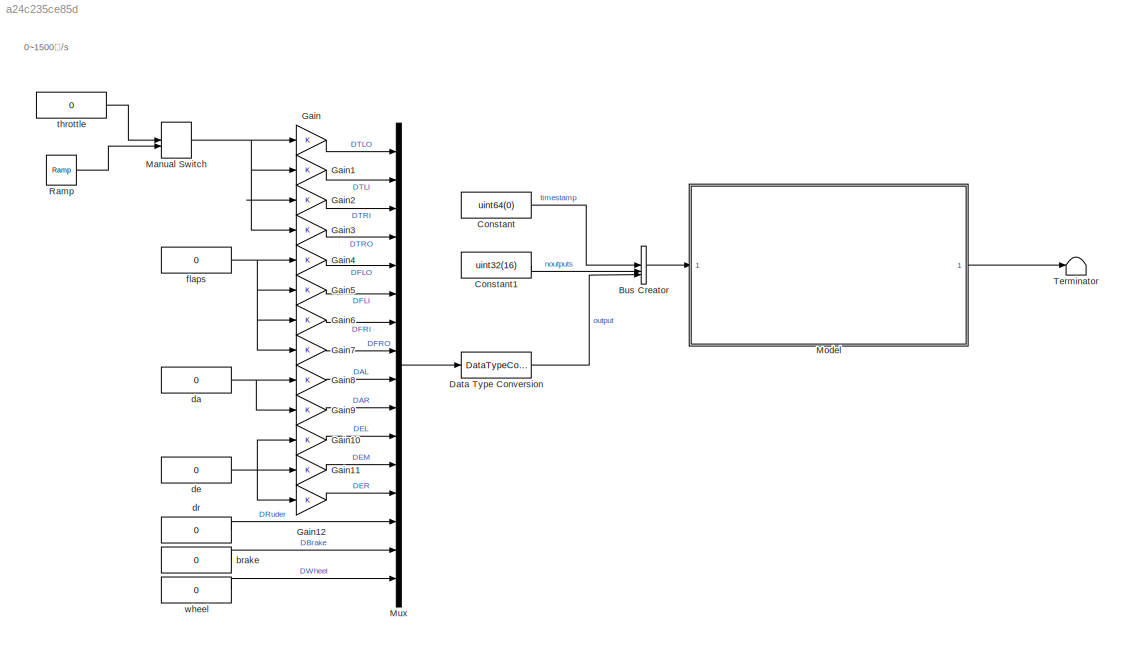
MODEL slx_a24c235ce85d
KIND model
CONFIG AbsTol = auto
CONFIG EnableMultiTasking = off
CONFIG FixedStep = 0.005
CONFIG MaxStep = auto
CONFIG MinStep = auto
CONFIG RelTol = 1e-3
CONFIG SampleTimeConstraint = Unconstrained
CONFIG SolverName = FixedStepAuto
CONFIG StartTime = 0.0
CONFIG StopTime = 100
BLOCK [BusCreator] Bus Creator
  DisplayOption = bar
  InheritFromInputs = on
  Inputs = 3
BLOCK [Constant] Constant
  Value = uint64(0)
BLOCK [Constant] Constant1
  Value = uint32(16)
BLOCK [DataTypeConversion] Data Type Conversion
  OutDataTypeStr = single
  RndMeth = Floor
  SaturateOnIntegerOverflow = off
BLOCK [Gain] Gain
BLOCK [Gain] Gain1
BLOCK [Gain] Gain10
BLOCK [Gain] Gain11
BLOCK [Gain] Gain12
BLOCK [Gain] Gain2
BLOCK [Gain] Gain3
BLOCK [Gain] Gain4
BLOCK [Gain] Gain5
BLOCK [Gain] Gain6
BLOCK [Gain] Gain7
BLOCK [Gain] Gain8
BLOCK [Gain] Gain9
BLOCK [ManualSwitch] Manual Switch
  CurrentSetting = 0
BLOCK [ModelReference] Model
  ModelNameDialog = L400_airframe.slx
  ModelReferenceVersion = 5.334
BLOCK [Mux] Mux
  DisplayOption = bar
  Inputs = 16
BLOCK [Reference] Ramp  REF=simulink/Sources/Ramp
  SourceBlock = simulink/Sources/Ramp
  SourceType = Ramp
BLOCK [Terminator] Terminator
BLOCK [Constant] brake
  NameLocation = left
  Value = 0
BLOCK [Constant] da
  NameLocation = left
  Value = 0
BLOCK [Constant] de
  NameLocation = left
  Value = 0
BLOCK [Constant] dr
  NameLocation = left
  Value = 0
BLOCK [Constant] flaps
  NameLocation = left
  Value = 0
BLOCK [Constant] throttle
  NameLocation = left
  Value = 0
BLOCK [Constant] wheel
  NameLocation = left
  Value = 0
ANNOTATION (root): 0~1500转/s
LINE Bus Creator:1 -> Model:1
LINE Constant1:1 -> Bus Creator:2
LINE Constant:1 -> Bus Creator:1
LINE Data Type Conversion:1 -> Bus Creator:3
LINE Gain10:1 -> Mux:11
LINE Gain11:1 -> Mux:12
LINE Gain12:1 -> Mux:13
LINE Gain1:1 -> Mux:2
LINE Gain2:1 -> Mux:3
LINE Gain3:1 -> Mux:4
LINE Gain4:1 -> Mux:5
LINE Gain5:1 -> Mux:6
LINE Gain6:1 -> Mux:7
LINE Gain7:1 -> Mux:8
LINE Gain8:1 -> Mux:9
LINE Gain9:1 -> Mux:10
LINE Gain:1 -> Mux:1
NET Manual Switch:1 -> Gain1:1, Gain2:1, Gain3:1, Gain:1
LINE Model:1 -> Terminator:1
LINE Mux:1 -> Data Type Conversion:1
LINE Ramp:1 -> Manual Switch:2
LINE brake:1 -> Mux:15
NET da:1 -> Gain8:1, Gain9:1
NET de:1 -> Gain10:1, Gain11:1, Gain12:1
LINE dr:1 -> Mux:14
NET flaps:1 -> Gain4:1, Gain5:1, Gain6:1, Gain7:1
LINE throttle:1 -> Manual Switch:1
LINE wheel:1 -> Mux:16
note: NET lines group one-source signal fan-out (src -> all destinations, sorted); 1:1 wires keep LINE
